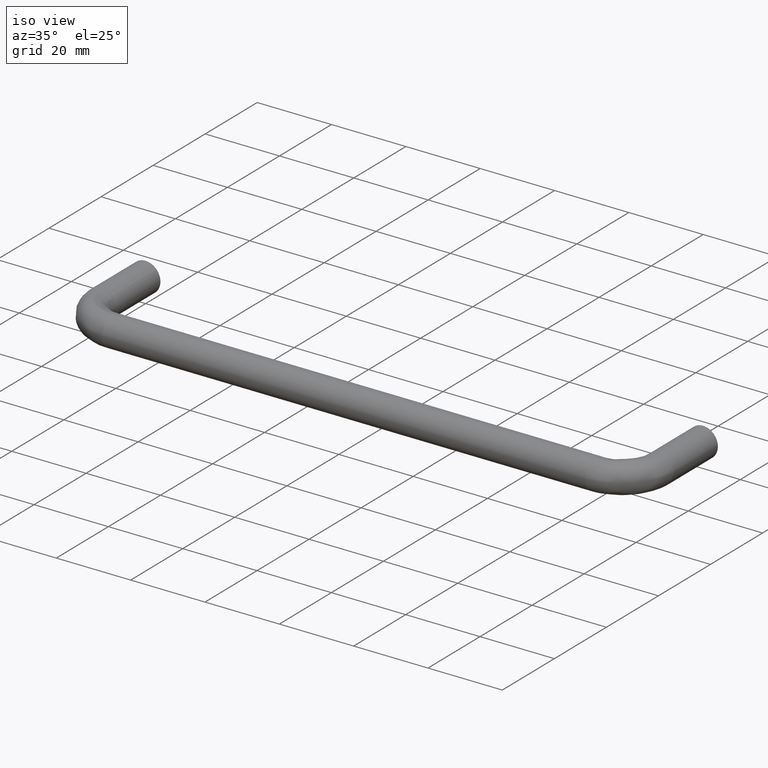
[diagram: clean part render]
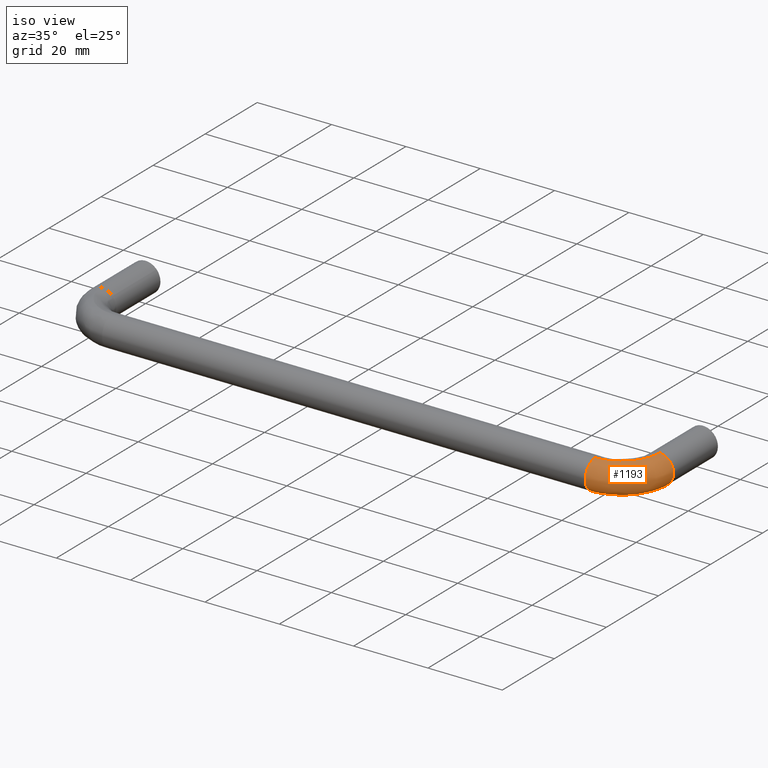
[diagram: same view with one face highlighted and labeled with its STEP entity id]
A machine part, iso view. The second image highlights one B-rep face of the part: STEP entity #1193.
In plain terms, the highlighted face is a freeform B-spline surface patch.
Its self-contained STEP definition (entity closure, byte-faithful):
#426=CARTESIAN_POINT('',(152.635878288640300,-17.0,-3.008678388840304));
#427=VERTEX_POINT('',#426);
#428=CARTESIAN_POINT('',(149.949735840425290,-16.999999999984301,-3.999684176814744));
#429=VERTEX_POINT('',#428);
#430=CARTESIAN_POINT('',(152.635878288640300,-16.999999999999993,-3.008678388840303));
#431=CARTESIAN_POINT('',(151.504351115804180,-17.0,-4.000000000000000));
#432=CARTESIAN_POINT('',(150.0,-17.0,-4.0));
#433=CARTESIAN_POINT('',(149.974866927991090,-17.0,-4.000000000000000));
#434=CARTESIAN_POINT('',(149.949735840425230,-16.999999999984297,-3.999684176814745));
#442=(BOUNDED_CURVE()B_SPLINE_CURVE(2,(#430,#431,#432,#433,#434),.UNSPECIFIED.,.F.,.U.)B_SPLINE_CURVE_WITH_KNOTS((3,2,3),(0.134954720076216,0.250000000000000,0.252215704081906),.UNSPECIFIED.)CURVE()GEOMETRIC_REPRESENTATION_ITEM()RATIONAL_B_SPLINE_CURVE((0.854482180312937,0.865216070615312,1.0,0.997404141198050,0.994854295635648))REPRESENTATION_ITEM(''));
#443=EDGE_CURVE('',#427,#429,#442,.T.);
#544=CARTESIAN_POINT('',(154.0,-17.0,0.0));
#545=VERTEX_POINT('',#544);
#546=CARTESIAN_POINT('',(154.0,-17.0,0.0));
#547=CARTESIAN_POINT('',(153.999999999999970,-17.000000000000004,-1.813582623412493));
#548=CARTESIAN_POINT('',(152.635878288640300,-16.999999999999993,-3.008678388840303));
#556=(BOUNDED_CURVE()B_SPLINE_CURVE(2,(#546,#547,#548),.UNSPECIFIED.,.F.,.U.)B_SPLINE_CURVE_WITH_KNOTS((3,3),(0.0,0.134954720076216),.UNSPECIFIED.)CURVE()GEOMETRIC_REPRESENTATION_ITEM()RATIONAL_B_SPLINE_CURVE((1.0,0.841890710571235,0.854482180312937))REPRESENTATION_ITEM(''));
#557=EDGE_CURVE('',#545,#427,#556,.T.);
#591=CARTESIAN_POINT('',(150.278933189532300,-17.000000005944891,3.990262682553283));
#592=VERTEX_POINT('',#591);
#608=CARTESIAN_POINT('',(150.278933189532300,-17.000000005944891,3.990262682553283));
#609=CARTESIAN_POINT('',(154.0,-17.000000000000004,3.730147045658222));
#610=CARTESIAN_POINT('',(154.0,-17.0,0.0));
#618=(BOUNDED_CURVE()B_SPLINE_CURVE(2,(#608,#609,#610),.UNSPECIFIED.,.F.,.U.)B_SPLINE_CURVE_WITH_KNOTS((3,3),(0.762166329259533,1.0),.UNSPECIFIED.)CURVE()GEOMETRIC_REPRESENTATION_ITEM()RATIONAL_B_SPLINE_CURVE((0.972879842979987,0.721360522538423,1.0))REPRESENTATION_ITEM(''));
#619=EDGE_CURVE('',#592,#545,#618,.T.);
#652=CARTESIAN_POINT('',(140.000000010251710,-27.278933189776939,3.990262682536179));
#653=VERTEX_POINT('',#652);
#747=CARTESIAN_POINT('',(140.000000000366700,-26.949735840281949,-3.999684176812943));
#748=VERTEX_POINT('',#747);
#762=CARTESIAN_POINT('',(140.0,-31.0,0.0));
#763=VERTEX_POINT('',#762);
#764=CARTESIAN_POINT('',(140.0,-31.0,0.0));
#765=CARTESIAN_POINT('',(140.0,-31.000000000000007,-4.000000000000000));
#766=CARTESIAN_POINT('',(140.0,-27.0,-4.0));
#767=CARTESIAN_POINT('',(140.000000000000030,-26.974866927847774,-4.0));
#768=CARTESIAN_POINT('',(140.000000000366700,-26.949735840281953,-3.999684176812943));
#776=(BOUNDED_CURVE()B_SPLINE_CURVE(2,(#764,#765,#766,#767,#768),.UNSPECIFIED.,.F.,.U.)B_SPLINE_CURVE_WITH_KNOTS((3,2,3),(0.0,0.250000000000000,0.252215704094509),.UNSPECIFIED.)CURVE()GEOMETRIC_REPRESENTATION_ITEM()RATIONAL_B_SPLINE_CURVE((1.0,0.707106781186548,1.0,0.997404141183284,0.994854295606640))REPRESENTATION_ITEM(''));
#777=EDGE_CURVE('',#763,#748,#776,.T.);
#779=CARTESIAN_POINT('',(140.000000010251680,-27.278933189776936,3.990262682536179));
#780=CARTESIAN_POINT('',(140.000000000000060,-31.000000000000004,3.730147045199646));
#781=CARTESIAN_POINT('',(140.0,-31.0,0.0));
#789=(BOUNDED_CURVE()B_SPLINE_CURVE(2,(#779,#780,#781),.UNSPECIFIED.,.F.,.U.)B_SPLINE_CURVE_WITH_KNOTS((3,3),(0.762166329280624,1.0),.UNSPECIFIED.)CURVE()GEOMETRIC_REPRESENTATION_ITEM()RATIONAL_B_SPLINE_CURVE((0.972879842935376,0.721360522563133,1.0))REPRESENTATION_ITEM(''));
#790=EDGE_CURVE('',#653,#763,#789,.T.);
#1122=CARTESIAN_POINT('',(140.000000000366750,-26.949735840281942,-3.999684176812943));
#1123=CARTESIAN_POINT('',(149.949735840497990,-26.949735839733130,-3.999684176815261));
#1124=CARTESIAN_POINT('',(149.949735840425210,-16.999999999984297,-3.999684176814744));
#1132=(BOUNDED_CURVE()B_SPLINE_CURVE(2,(#1122,#1123,#1124),.UNSPECIFIED.,.F.,.U.)B_SPLINE_CURVE_WITH_KNOTS((3,3),(-1.734750791581804,-0.265249208338318),.UNSPECIFIED.)CURVE()GEOMETRIC_REPRESENTATION_ITEM()RATIONAL_B_SPLINE_CURVE((0.889029723549296,0.628638946230295,0.889029723577604))REPRESENTATION_ITEM(''));
#1133=EDGE_CURVE('',#748,#429,#1132,.T.);
#1139=CARTESIAN_POINT('',(140.000000010251630,-27.278933189776939,3.990262682536179));
#1140=CARTESIAN_POINT('',(150.278932994411950,-27.278932985798466,3.990262695361730));
#1141=CARTESIAN_POINT('',(150.278933189532300,-17.000000005944887,3.990262682553283));
#1149=(BOUNDED_CURVE()B_SPLINE_CURVE(2,(#1139,#1140,#1141),.UNSPECIFIED.,.F.,.U.)B_SPLINE_CURVE_WITH_KNOTS((3,3),(-1.734750789585729,-0.265249209543533),.UNSPECIFIED.)CURVE()GEOMETRIC_REPRESENTATION_ITEM()RATIONAL_B_SPLINE_CURVE((0.869031711157241,0.614498217100348,0.869031711458884))REPRESENTATION_ITEM(''));
#1150=EDGE_CURVE('',#653,#592,#1149,.T.);
#1155=CARTESIAN_POINT('',(139.311996111165090,-26.870105439266858,-3.998984437962797));
#1156=CARTESIAN_POINT('',(150.661212264284560,-27.661211967623686,-3.998984437962798));
#1157=CARTESIAN_POINT('',(149.870105420122340,-16.311995836517688,-3.998984437962797));
#1158=CARTESIAN_POINT('',(139.310065778157110,-26.897798001228502,-3.999333295735426));
#1159=CARTESIAN_POINT('',(150.691124435236700,-27.691124137743476,-3.999333295735426));
#1160=CARTESIAN_POINT('',(149.897797982030260,-16.310065502739153,-3.999333295735425));
#1161=CARTESIAN_POINT('',(139.029997821354950,-30.915653581200111,-4.049948336348673));
#1162=CARTESIAN_POINT('',(155.031018415994340,-32.031017997738410,-4.049948336348674));
#1163=CARTESIAN_POINT('',(153.915653554208690,-16.029997434135389,-4.049948336348675));
#1164=CARTESIAN_POINT('',(139.026502597596990,-30.965796069615436,-0.050264159533411));
#1165=CARTESIAN_POINT('',(155.085179915660690,-32.085179495897613,-0.050264159533411));
#1166=CARTESIAN_POINT('',(153.965796042526760,-16.026502208982077,-0.050264159533411));
#1167=CARTESIAN_POINT('',(139.023201871017820,-31.013148301035638,3.726851351358788));
#1168=CARTESIAN_POINT('',(155.136327514180690,-32.136327092994435,3.726851351358788));
#1169=CARTESIAN_POINT('',(154.013148273855050,-16.023201481085319,3.726851351358790));
#1170=CARTESIAN_POINT('',(139.287199531158280,-27.225837235513794,3.992239752889001));
#1171=CARTESIAN_POINT('',(151.045456608205740,-28.045456300852791,3.992239752889000));
#1172=CARTESIAN_POINT('',(150.225837215679260,-16.287199246612250,3.992239752889000));
#1173=CARTESIAN_POINT('',(139.289155632465510,-27.197775001470784,3.994206158950504));
#1174=CARTESIAN_POINT('',(151.015145135285480,-28.015144828775966,3.994206158950502));
#1175=CARTESIAN_POINT('',(150.197774981690770,-16.289155348700216,3.994206158950504));
#1183=(BOUNDED_SURFACE()B_SPLINE_SURFACE(2,2,((#1155,#1158,#1161,#1164,#1167,#1170,#1173),(#1156,#1159,#1162,#1165,#1168,#1171,#1174),(#1157,#1160,#1163,#1166,#1169,#1172,#1175)),.UNSPECIFIED.,.F.,.F.,.U.)B_SPLINE_SURFACE_WITH_KNOTS((3,3),(3,1,2,1,3),(0.0,25.512659288654021),(0.0,0.065617308142670,6.693034306112206,13.055354624162961,13.120468368870460),.UNSPECIFIED.)GEOMETRIC_REPRESENTATION_ITEM()RATIONAL_B_SPLINE_SURFACE(((0.921656701113350,0.918999398177141,0.647951709431553,0.916342095240933,0.658687324863928,0.898155670936738,0.900581628262704),(0.604814145851324,0.603070357297853,0.425202094466791,0.601326568744382,0.432247073437895,0.589392182905984,0.590984156692106),(0.921656712797588,0.918999409827691,0.647951717645915,0.916342106857795,0.658687333214390,0.898155682323043,0.900581639679764)))REPRESENTATION_ITEM('')SURFACE());
#1184=ORIENTED_EDGE('',*,*,#619,.F.);
#1185=ORIENTED_EDGE('',*,*,#1150,.F.);
#1186=ORIENTED_EDGE('',*,*,#790,.T.);
#1187=ORIENTED_EDGE('',*,*,#777,.T.);
#1188=ORIENTED_EDGE('',*,*,#1133,.T.);
#1189=ORIENTED_EDGE('',*,*,#443,.F.);
#1190=ORIENTED_EDGE('',*,*,#557,.F.);
#1191=EDGE_LOOP('',(#1184,#1185,#1186,#1187,#1188,#1189,#1190));
#1192=FACE_OUTER_BOUND('',#1191,.T.);
#1193=ADVANCED_FACE('',(#1192),#1183,.T.);